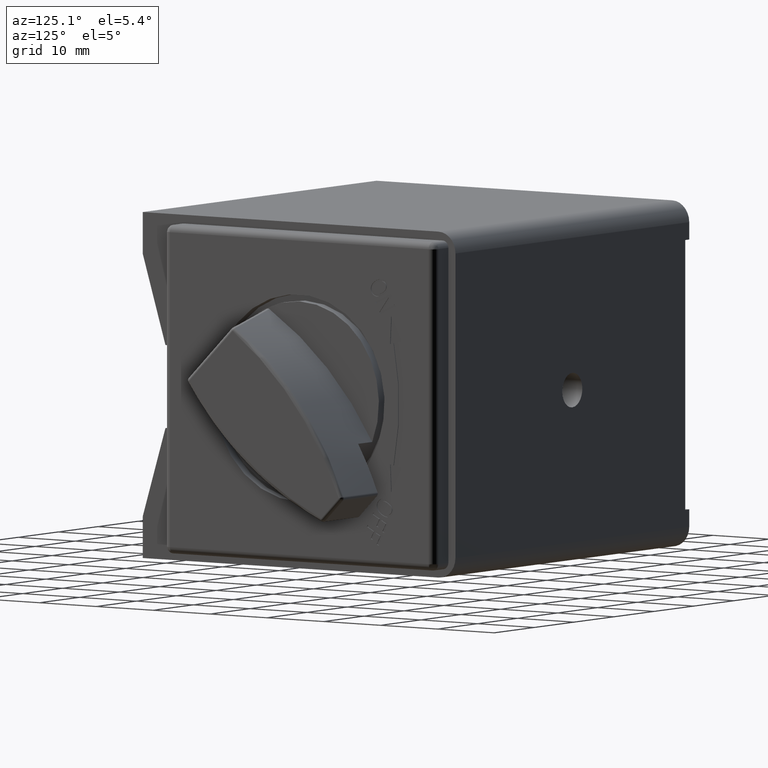
[diagram: clean part render]
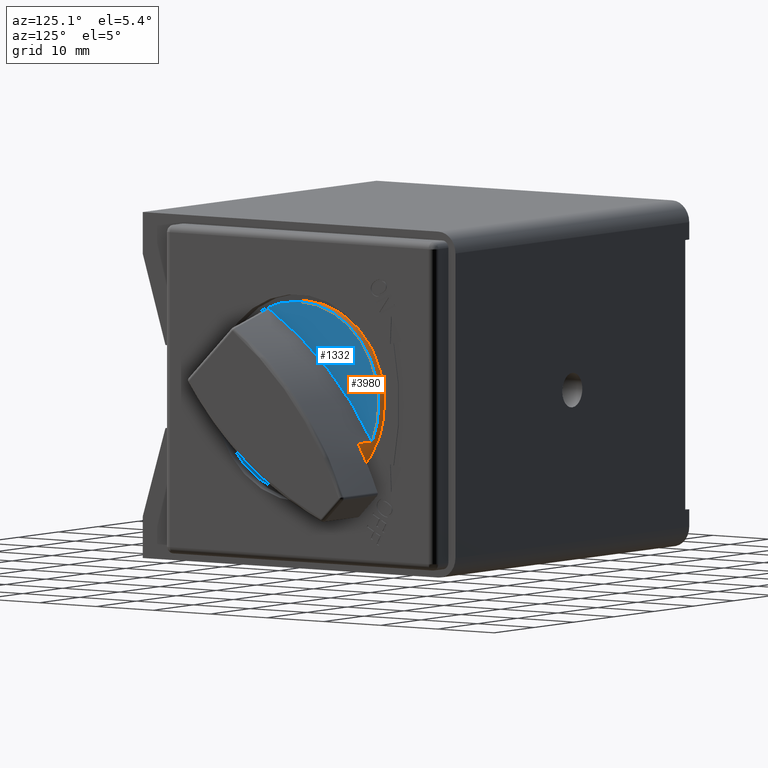
[diagram: same view with the hole feature highlighted: cylindrical wall and planar end face, labeled with their STEP entity ids]
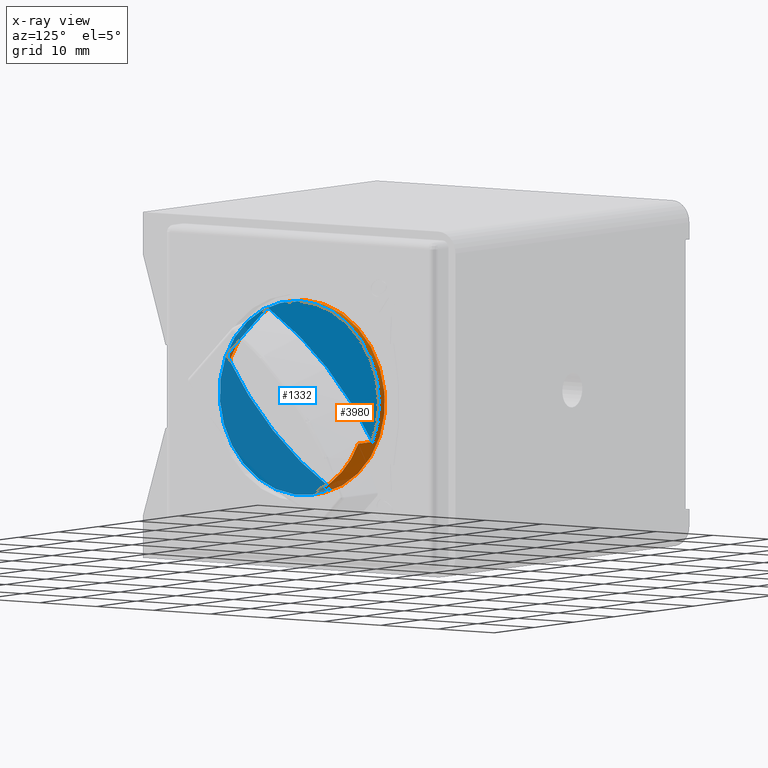
[diagram: x-ray of the same camera — body ghosted, the hole faces saturated]
A machine part, auxiliary view. The highlighted faces form one hole feature of diameter 28 mm: the cylindrical wall (entity #3980, orange) and its adjacent planar end face (entity #1332, blue) — they share a circular edge in the B-rep.
The next image is the same camera in x-ray (body ghosted, the hole faces saturated) — the bore reads through the body.
Wall:
#121 = CARTESIAN_POINT ( 'NONE',  ( 72.34797974644665430, 8.130400960251012776, -12.81790096025105186 ) ) ;
#130 = EDGE_CURVE ( 'NONE', #374, #867, #3388, .T. ) ;
#281 = DIRECTION ( 'NONE',  ( -1.000000000000000000, -1.066997199106502207E-32, 1.460819769243627131E-16 ) ) ;
#346 = EDGE_CURVE ( 'NONE', #3469, #374, #4960, .T. ) ;
#374 = VERTEX_POINT ( 'NONE', #4543 ) ;
#633 = DIRECTION ( 'NONE',  ( 0.000000000000000000, 0.000000000000000000, 1.000000000000000000 ) ) ;
#654 = CARTESIAN_POINT ( 'NONE',  ( 36.25000000000002132, 2.500000000000001776, -8.331237746467566532E-15 ) ) ;
#746 = AXIS2_PLACEMENT_3D ( 'NONE', #4710, #1601, #837 ) ;
#837 = DIRECTION ( 'NONE',  ( 0.000000000000000000, 0.000000000000000000, 1.000000000000000000 ) ) ;
#867 = VERTEX_POINT ( 'NONE', #3802 ) ;
#979 = VECTOR ( 'NONE', #3623, 1000.000000000000000 ) ;
#1278 = DIRECTION ( 'NONE',  ( -1.000000000000000000, -1.066997199106502207E-32, 1.460819769243627131E-16 ) ) ;
#1300 = FACE_OUTER_BOUND ( 'NONE', #1817, .T. ) ;
#1308 = CIRCLE ( 'NONE', #2453, 14.00000000000000000 ) ;
#1472 = EDGE_LOOP ( 'NONE', ( #1948 ) ) ;
#1601 = DIRECTION ( 'NONE',  ( -1.000000000000000000, -1.066997199106502207E-32, 1.460819769243627131E-16 ) ) ;
#1708 = LINE ( 'NONE', #121, #979 ) ;
#1715 = CARTESIAN_POINT ( 'NONE',  ( 32.75000000000000711, 2.500000000000001776, -7.819950827232295163E-15 ) ) ;
#1817 = EDGE_LOOP ( 'NONE', ( #3993, #4096, #2787, #4300 ) ) ;
#1948 = ORIENTED_EDGE ( 'NONE', *, *, #2539, .F. ) ;
#2099 = DIRECTION ( 'NONE',  ( 0.000000000000000000, 0.000000000000000000, 1.000000000000000000 ) ) ;
#2206 = CARTESIAN_POINT ( 'NONE',  ( 32.75000000000000711, 15.31790096025106074, -5.630400960250971032 ) ) ;
#2453 = AXIS2_PLACEMENT_3D ( 'NONE', #1715, #4028, #2099 ) ;
#2539 = EDGE_CURVE ( 'NONE', #4783, #4783, #3443, .T. ) ;
#2591 = VERTEX_POINT ( 'NONE', #4683 ) ;
#2751 = EDGE_CURVE ( 'NONE', #867, #2591, #1708, .T. ) ;
#2787 = ORIENTED_EDGE ( 'NONE', *, *, #5071, .T. ) ;
#3254 = FACE_OUTER_BOUND ( 'NONE', #1472, .T. ) ;
#3276 = DIRECTION ( 'NONE',  ( 0.000000000000000000, 0.000000000000000000, 1.000000000000000000 ) ) ;
#3388 = CIRCLE ( 'NONE', #4032, 14.00000000000000000 ) ;
#3443 = CIRCLE ( 'NONE', #746, 14.00000000000000000 ) ;
#3469 = VERTEX_POINT ( 'NONE', #2206 ) ;
#3623 = DIRECTION ( 'NONE',  ( -1.000000000000000000, -1.066997199106502207E-32, 1.460819769243627131E-16 ) ) ;
#3795 = CARTESIAN_POINT ( 'NONE',  ( 72.34797974644665430, 2.500000000000001776, -1.360450199080409748E-14 ) ) ;
#3802 = CARTESIAN_POINT ( 'NONE',  ( 36.25000000000002132, 8.130400960251019882, -12.81790096025104297 ) ) ;
#3835 = CARTESIAN_POINT ( 'NONE',  ( 72.34797974644665430, 15.31790096025105896, -5.630400960250983466 ) ) ;
#3980 = ADVANCED_FACE ( 'NONE', ( #3254, #1300 ), #4838, .T. ) ;
#3993 = ORIENTED_EDGE ( 'NONE', *, *, #130, .T. ) ;
#4028 = DIRECTION ( 'NONE',  ( -1.000000000000000000, -1.066997199106502207E-32, 1.460819769243627131E-16 ) ) ;
#4032 = AXIS2_PLACEMENT_3D ( 'NONE', #654, #1278, #3276 ) ;
#4096 = ORIENTED_EDGE ( 'NONE', *, *, #2751, .T. ) ;
#4127 = DIRECTION ( 'NONE',  ( 1.000000000000000000, 1.066997199106502207E-32, -1.460819769243627131E-16 ) ) ;
#4167 = VECTOR ( 'NONE', #4127, 1000.000000000000000 ) ;
#4300 = ORIENTED_EDGE ( 'NONE', *, *, #346, .T. ) ;
#4413 = CARTESIAN_POINT ( 'NONE',  ( 31.25000000000000711, 2.500000000000001776, 13.99999999999999289 ) ) ;
#4543 = CARTESIAN_POINT ( 'NONE',  ( 36.25000000000002132, 15.31790096025105896, -5.630400960250971032 ) ) ;
#4683 = CARTESIAN_POINT ( 'NONE',  ( 32.75000000000000711, 8.130400960251028764, -12.81790096025104475 ) ) ;
#4710 = CARTESIAN_POINT ( 'NONE',  ( 31.25000000000000711, 2.500000000000001776, -7.600827861845749614E-15 ) ) ;
#4783 = VERTEX_POINT ( 'NONE', #4413 ) ;
#4838 = CYLINDRICAL_SURFACE ( 'NONE', #5013, 14.00000000000000000 ) ;
#4960 = LINE ( 'NONE', #3835, #4167 ) ;
#5013 = AXIS2_PLACEMENT_3D ( 'NONE', #3795, #281, #633 ) ;
#5071 = EDGE_CURVE ( 'NONE', #2591, #3469, #1308, .T. ) ;
End face:
#62 = FACE_OUTER_BOUND ( 'NONE', #4678, .T. ) ;
#157 = VECTOR ( 'NONE', #3849, 1000.000000000000000 ) ;
#324 = ORIENTED_EDGE ( 'NONE', *, *, #5071, .F. ) ;
#354 = VERTEX_POINT ( 'NONE', #735 ) ;
#397 = VERTEX_POINT ( 'NONE', #1829 ) ;
#677 = CARTESIAN_POINT ( 'NONE',  ( 32.74999999999990052, -10.14751721548342545, 5.679621067036642046 ) ) ;
#708 = ORIENTED_EDGE ( 'NONE', *, *, #866, .T. ) ;
#735 = CARTESIAN_POINT ( 'NONE',  ( 32.75000000013383072, -10.08667327051549023, 5.241289895873964433 ) ) ;
#866 = EDGE_CURVE ( 'NONE', #3213, #2204, #5019, .T. ) ;
#995 = ORIENTED_EDGE ( 'NONE', *, *, #3136, .F. ) ;
#1030 = CARTESIAN_POINT ( 'NONE',  ( 32.74999999999995737, -10.09767488334281538, 5.787101427245118224 ) ) ;
#1128 = DIRECTION ( 'NONE',  ( 1.334402673828312846E-16, -8.673617379884033500E-16, 1.000000000000000000 ) ) ;
#1308 = CIRCLE ( 'NONE', #2453, 14.00000000000000000 ) ;
#1332 = ADVANCED_FACE ( 'NONE', ( #62 ), #4689, .T. ) ;
#1483 = CARTESIAN_POINT ( 'NONE',  ( 32.75000000000002842, -3.367912832509139420, 12.51686347834110258 ) ) ;
#1540 = CARTESIAN_POINT ( 'NONE',  ( 32.75000000000000711, -10.01686347834112212, 5.867912832509089682 ) ) ;
#1582 = ORIENTED_EDGE ( 'NONE', *, *, #3998, .T. ) ;
#1589 = EDGE_CURVE ( 'NONE', #354, #397, #3848, .T. ) ;
#1624 = CARTESIAN_POINT ( 'NONE',  ( 32.75000000000000711, 3.120966807386518894E-31, -5.001481684947868781E-15 ) ) ;
#1715 = CARTESIAN_POINT ( 'NONE',  ( 32.75000000000000711, 2.500000000000001776, -7.819950827232295163E-15 ) ) ;
#1763 = DIRECTION ( 'NONE',  ( 1.334402673828313586E-16, 0.000000000000000000, 1.000000000000000000 ) ) ;
#1791 = CARTESIAN_POINT ( 'NONE',  ( 32.75000000013383072, -10.08667327051549023, 5.241289895873964433 ) ) ;
#1829 = CARTESIAN_POINT ( 'NONE',  ( 32.75000000001151079, -10.01686347820002965, 5.867912832646188903 ) ) ;
#1855 = CARTESIAN_POINT ( 'NONE',  ( 32.75000000000001421, 34.49999999999976552, 32.00000000000009948 ) ) ;
#1972 = CIRCLE ( 'NONE', #4824, 51.99999999999997868 ) ;
#1992 = CARTESIAN_POINT ( 'NONE',  ( 32.75000000013383072, -2.741289895874134963, 12.58667327051554530 ) ) ;
#2099 = DIRECTION ( 'NONE',  ( 0.000000000000000000, 0.000000000000000000, 1.000000000000000000 ) ) ;
#2204 = VERTEX_POINT ( 'NONE', #1992 ) ;
#2206 = CARTESIAN_POINT ( 'NONE',  ( 32.75000000000000711, 15.31790096025106074, -5.630400960250971032 ) ) ;
#2396 = ORIENTED_EDGE ( 'NONE', *, *, #1589, .T. ) ;
#2424 = EDGE_CURVE ( 'NONE', #354, #2591, #1972, .T. ) ;
#2453 = AXIS2_PLACEMENT_3D ( 'NONE', #1715, #4028, #2099 ) ;
#2591 = VERTEX_POINT ( 'NONE', #4683 ) ;
#2651 = CARTESIAN_POINT ( 'NONE',  ( 32.75000000013383072, -2.741289895874134963, 12.58667327051554530 ) ) ;
#2713 = DIRECTION ( 'NONE',  ( -1.460819769243627131E-16, 0.000000000000000000, -1.000000000000000000 ) ) ;
#2742 = DIRECTION ( 'NONE',  ( 1.000000000000000000, 1.066997199106502070E-32, -1.460819769243627131E-16 ) ) ;
#2959 = DIRECTION ( 'NONE',  ( 1.000000000000000000, 1.066997199106502070E-32, -1.460819769243627131E-16 ) ) ;
#3010 = CARTESIAN_POINT ( 'NONE',  ( 32.74999999999999289, -2.839190648197932099, 12.64542844087526241 ) ) ;
#3136 = EDGE_CURVE ( 'NONE', #3469, #2204, #3282, .T. ) ;
#3213 = VERTEX_POINT ( 'NONE', #1483 ) ;
#3282 = CIRCLE ( 'NONE', #3463, 52.00000000000001421 ) ;
#3362 = CARTESIAN_POINT ( 'NONE',  ( 32.75000000000000000, -10.14543358327739320, 5.339199216719675789 ) ) ;
#3392 = CARTESIAN_POINT ( 'NONE',  ( 32.75000000000000711, -2.953481790685028585, 12.67132005999146038 ) ) ;
#3394 = CARTESIAN_POINT ( 'NONE',  ( 32.74999999999990763, -10.17124669694646677, 5.453611049955823908 ) ) ;
#3463 = AXIS2_PLACEMENT_3D ( 'NONE', #3874, #4610, #1128 ) ;
#3469 = VERTEX_POINT ( 'NONE', #2206 ) ;
#3544 = AXIS2_PLACEMENT_3D ( 'NONE', #1624, #2742, #2713 ) ;
#3715 = CARTESIAN_POINT ( 'NONE',  ( 32.75000000000000711, -3.287109843577263213, 12.59766646694531289 ) ) ;
#3848 = B_SPLINE_CURVE_WITH_KNOTS ( 'NONE', 3,
 ( #1791, #3362, #3394, #677, #1030, #4926 ),
 .UNSPECIFIED., .F., .F.,
 ( 4, 2, 4 ),
 ( 3.127317220692750759E-18, 0.0003377569294579877172, 0.0006755138589159722902 ),
 .UNSPECIFIED. ) ;
#3849 = DIRECTION ( 'NONE',  ( 0.000000000000000000, 0.7071067811865462405, 0.7071067811865489050 ) ) ;
#3874 = CARTESIAN_POINT ( 'NONE',  ( 32.75000000000000000, -29.50000000000000355, -31.99999999999990408 ) ) ;
#3998 = EDGE_CURVE ( 'NONE', #397, #3213, #5034, .T. ) ;
#4028 = DIRECTION ( 'NONE',  ( -1.000000000000000000, -1.066997199106502207E-32, 1.460819769243627131E-16 ) ) ;
#4148 = CARTESIAN_POINT ( 'NONE',  ( 32.75000000000002842, -3.367912832509139420, 12.51686347834110258 ) ) ;
#4509 = CARTESIAN_POINT ( 'NONE',  ( 32.75000000000000000, -3.180284243927892440, 12.64738765388031716 ) ) ;
#4610 = DIRECTION ( 'NONE',  ( 1.000000000000000000, 1.066997199106502070E-32, -1.460819769243627131E-16 ) ) ;
#4678 = EDGE_LOOP ( 'NONE', ( #708, #995, #324, #4722, #2396, #1582 ) ) ;
#4683 = CARTESIAN_POINT ( 'NONE',  ( 32.75000000000000711, 8.130400960251028764, -12.81790096025104475 ) ) ;
#4689 = PLANE ( 'NONE',  #3544 ) ;
#4722 = ORIENTED_EDGE ( 'NONE', *, *, #2424, .F. ) ;
#4824 = AXIS2_PLACEMENT_3D ( 'NONE', #1855, #2959, #1763 ) ;
#4926 = CARTESIAN_POINT ( 'NONE',  ( 32.75000000001151079, -10.01686347820002965, 5.867912832646188903 ) ) ;
#5019 = B_SPLINE_CURVE_WITH_KNOTS ( 'NONE', 3,
 ( #4148, #3715, #4509, #3392, #3010, #2651 ),
 .UNSPECIFIED., .F., .F.,
 ( 4, 2, 4 ),
 ( 2.168404344971008868E-18, 0.0003378421731151202024, 0.0006756843462302382364 ),
 .UNSPECIFIED. ) ;
#5034 = LINE ( 'NONE', #1540, #157 ) ;
#5071 = EDGE_CURVE ( 'NONE', #2591, #3469, #1308, .T. ) ;